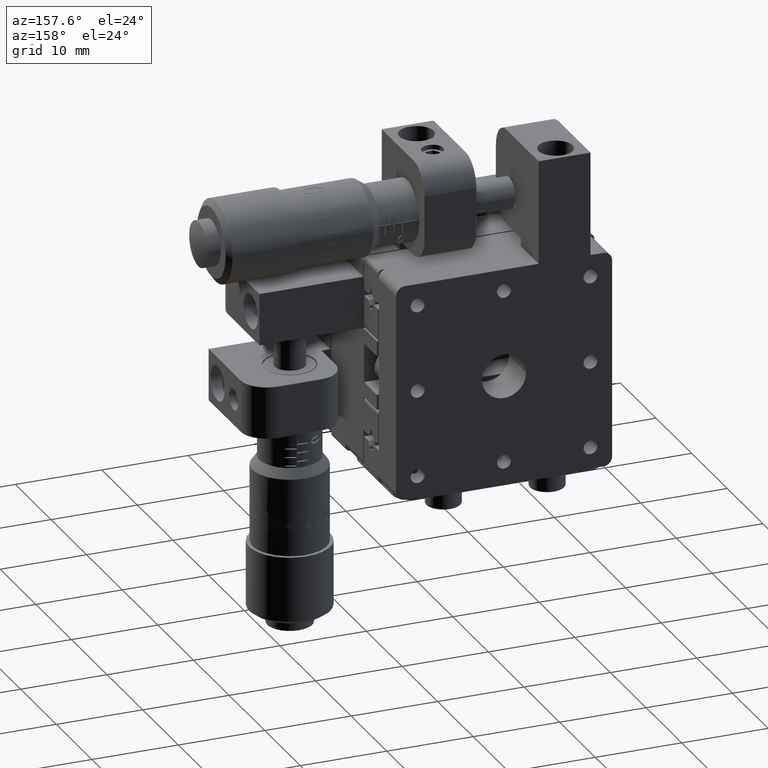
[diagram: clean part render]
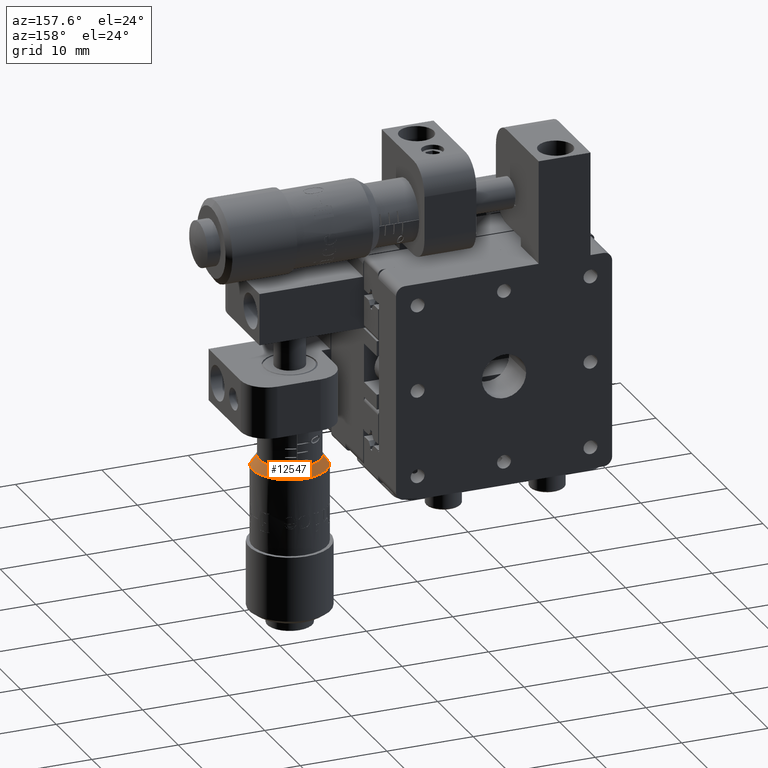
[diagram: same view with one face highlighted and labeled with its STEP entity id]
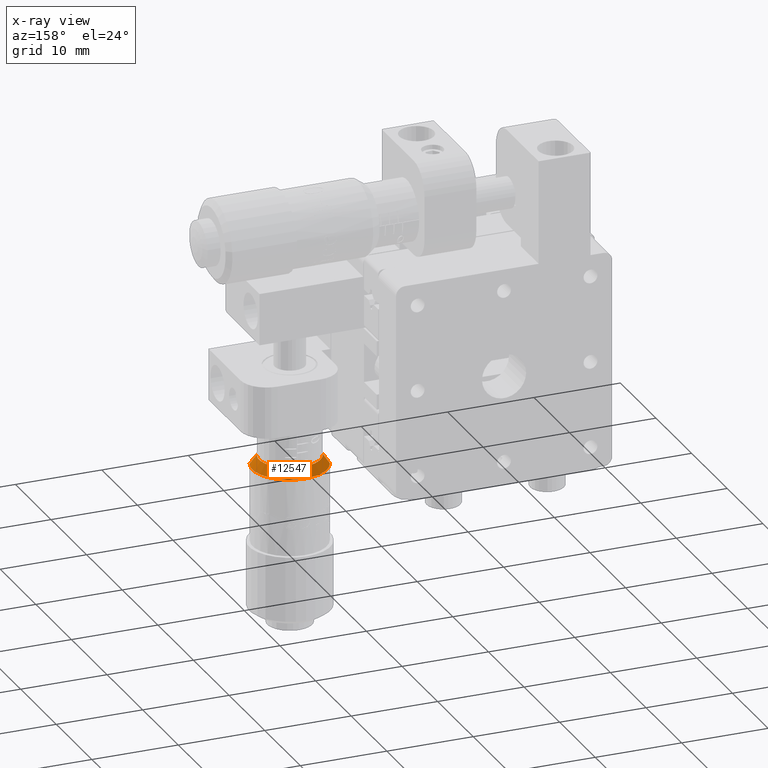
[diagram: x-ray of the same camera — body ghosted, the highlighted face saturated]
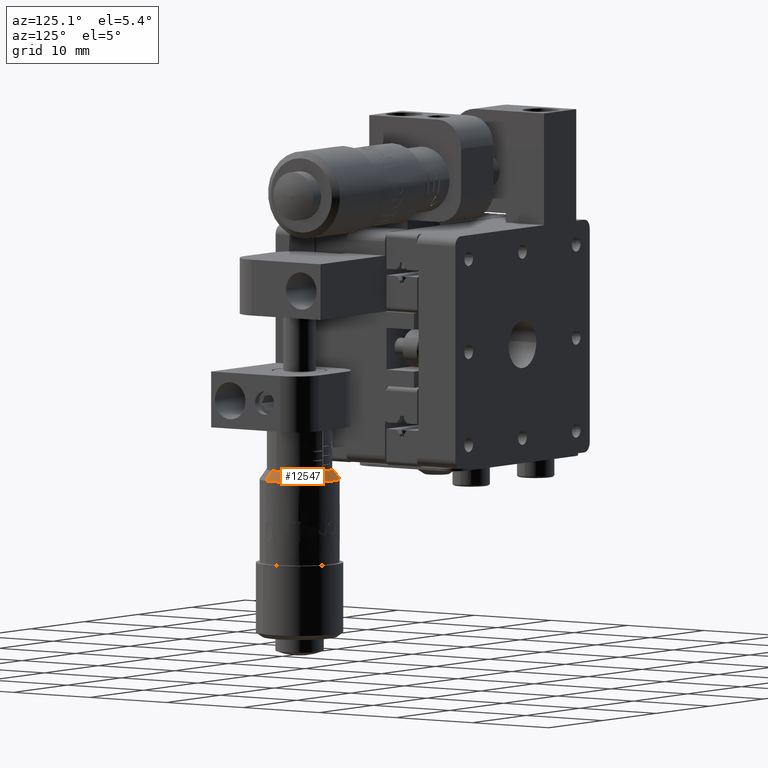
[diagram: same view with one face highlighted and labeled with its STEP entity id]
A machine part, auxiliary view. The second image highlights one B-rep face of the part: STEP entity #12547.
The next image is the same camera in x-ray: the body ghosted, the highlighted face saturated — about 0% of this face is hidden behind the body in this view.
A second angle (auxiliary view) of the same face is appended — the face is thin or edge-on in the first view.
In plain terms, the highlighted conical surface has half-angle 35.538 deg.
Its self-contained STEP definition (entity closure, byte-faithful):
#2319 = VECTOR ( 'NONE', #74676, 1000.000000000000000 ) ;
#7303 = CARTESIAN_POINT ( 'NONE',  ( 22.00803173598054100, -3.657459984517446900, -13.94999999999998000 ) ) ;
#8114 = CARTESIAN_POINT ( 'NONE',  ( 13.99196826401951200, -0.5425400154825886800, -13.94999999999998000 ) ) ;
#11544 = DIRECTION ( 'NONE',  ( 1.512009692421510500E-030, 2.449293598294718200E-016, -1.000000000000000000 ) ) ;
#11870 = ORIENTED_EDGE ( 'NONE', *, *, #22574, .F. ) ;
#12547 = ADVANCED_FACE ( 'NONE', ( #80086 ), #91780, .T. ) ;
#14799 = DIRECTION ( 'NONE',  ( 0.5417723550209601100, -0.2105244716722514400, -0.8137334712067350000 ) ) ;
#16225 = DIRECTION ( 'NONE',  ( 0.9321004037163985700, -0.3621999963994020900, 0.0000000000000000000 ) ) ;
#16550 = CARTESIAN_POINT ( 'NONE',  ( 18.00000000000002500, -2.100000000000018300, -12.89999999999998100 ) ) ;
#19934 = CIRCLE ( 'NONE', #43975, 3.550000000000004700 ) ;
#22574 = EDGE_CURVE ( 'NONE', #92677, #62119, #36699, .T. ) ;
#24846 = DIRECTION ( 'NONE',  ( 1.512009692421510500E-030, 2.449293598294718200E-016, -1.000000000000000000 ) ) ;
#27082 = CARTESIAN_POINT ( 'NONE',  ( 21.30895643319324200, -3.385809987217895900, -12.89999999999998100 ) ) ;
#29451 = EDGE_CURVE ( 'NONE', #78944, #44305, #19934, .T. ) ;
#36699 = CIRCLE ( 'NONE', #93248, 4.300000000000000700 ) ;
#39015 = DIRECTION ( 'NONE',  ( -1.512009692421510500E-030, -2.449293598294718200E-016, 1.000000000000000000 ) ) ;
#40125 = ORIENTED_EDGE ( 'NONE', *, *, #93054, .F. ) ;
#43975 = AXIS2_PLACEMENT_3D ( 'NONE', #16550, #39015, #16225 ) ;
#44305 = VERTEX_POINT ( 'NONE', #62637 ) ;
#45211 = CARTESIAN_POINT ( 'NONE',  ( 22.00803173598054100, -3.657459984517446900, -13.94999999999998000 ) ) ;
#49920 = CARTESIAN_POINT ( 'NONE',  ( 18.00000000000002500, -2.100000000000018300, -13.94999999999998000 ) ) ;
#49945 = VECTOR ( 'NONE', #14799, 999.9999999999998900 ) ;
#59255 = LINE ( 'NONE', #7303, #49945 ) ;
#62119 = VERTEX_POINT ( 'NONE', #45211 ) ;
#62637 = CARTESIAN_POINT ( 'NONE',  ( 14.69104356680681000, -0.8141900127821404300, -12.89999999999998100 ) ) ;
#64438 = CARTESIAN_POINT ( 'NONE',  ( 13.99196826401951200, -0.5425400154825886800, -13.94999999999998000 ) ) ;
#66229 = LINE ( 'NONE', #8114, #2319 ) ;
#68520 = EDGE_LOOP ( 'NONE', ( #87804, #85609, #11870, #40125 ) ) ;
#69256 = CARTESIAN_POINT ( 'NONE',  ( 18.00000000000002500, -2.100000000000018300, -13.94999999999998000 ) ) ;
#71236 = DIRECTION ( 'NONE',  ( -0.9321004037163985700, 0.3621999963994020900, 0.0000000000000000000 ) ) ;
#74676 = DIRECTION ( 'NONE',  ( -0.5417723550209599900, 0.2105244716722518600, -0.8137334712067348900 ) ) ;
#76757 = DIRECTION ( 'NONE',  ( -0.9321004037163985700, 0.3621999963994020900, 0.0000000000000000000 ) ) ;
#78944 = VERTEX_POINT ( 'NONE', #27082 ) ;
#80086 = FACE_OUTER_BOUND ( 'NONE', #68520, .T. ) ;
#85609 = ORIENTED_EDGE ( 'NONE', *, *, #95432, .T. ) ;
#87804 = ORIENTED_EDGE ( 'NONE', *, *, #29451, .F. ) ;
#91780 = CONICAL_SURFACE ( 'NONE', #96426, 4.300000000000000700, 0.6202494859828212600 ) ;
#92677 = VERTEX_POINT ( 'NONE', #64438 ) ;
#93054 = EDGE_CURVE ( 'NONE', #44305, #92677, #66229, .T. ) ;
#93248 = AXIS2_PLACEMENT_3D ( 'NONE', #69256, #24846, #76757 ) ;
#95432 = EDGE_CURVE ( 'NONE', #78944, #62119, #59255, .T. ) ;
#96426 = AXIS2_PLACEMENT_3D ( 'NONE', #49920, #11544, #71236 ) ;